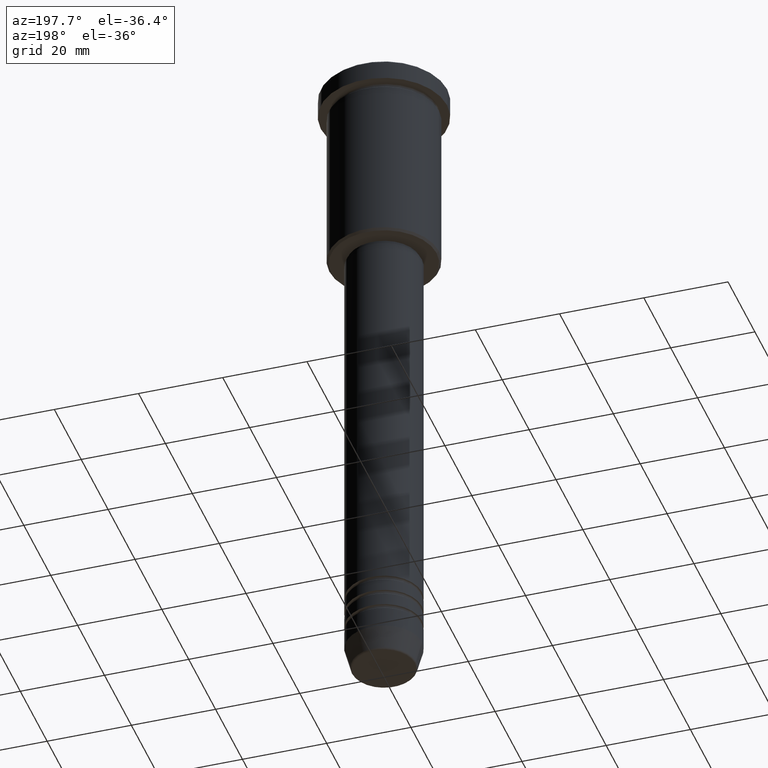
[diagram: clean part render]
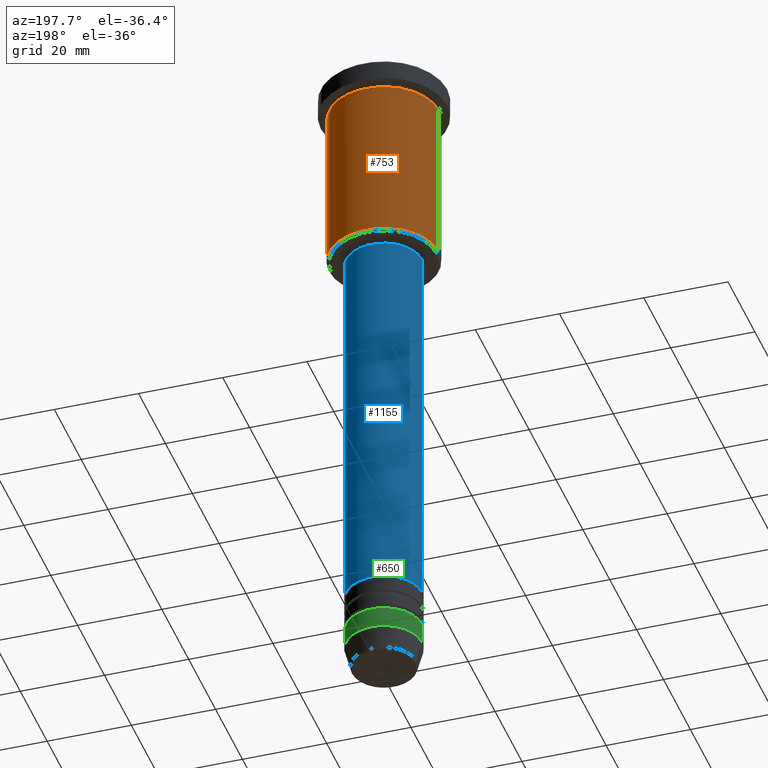
[diagram: same view with three faces highlighted in distinct colors, each labeled with its STEP entity id]
A machine part, auxiliary view with three faces highlighted in distinct colors.
Their STEP definitions:

[orange] entity #753 — the highlighted cylindrical surface (partial cylindrical patch) has radius 13 mm, axis along (-0, -0, 1).
#11 = VERTEX_POINT ( 'NONE', #544 ) ;
#49 = DIRECTION ( 'NONE',  ( 1.000000000000000000, 0.000000000000000000, 0.000000000000000000 ) ) ;
#83 = LINE ( 'NONE', #807, #364 ) ;
#97 = DIRECTION ( 'NONE',  ( 1.000000000000000000, 0.000000000000000000, 0.000000000000000000 ) ) ;
#127 = CYLINDRICAL_SURFACE ( 'NONE', #269, 13.00000000000000178 ) ;
#139 = AXIS2_PLACEMENT_3D ( 'NONE', #481, #549, #97 ) ;
#143 = DIRECTION ( 'NONE',  ( -1.000000000000000000, 0.000000000000000000, 0.000000000000000000 ) ) ;
#153 = CARTESIAN_POINT ( 'NONE',  ( 0.000000000000000000, 0.000000000000000000, -45.49999999999996447 ) ) ;
#269 = AXIS2_PLACEMENT_3D ( 'NONE', #393, #491, #49 ) ;
#283 = EDGE_CURVE ( 'NONE', #11, #993, #1133, .T. ) ;
#297 = CARTESIAN_POINT ( 'NONE',  ( -13.00000000000000178, 1.592040838891559293E-15, -45.49999999999996447 ) ) ;
#364 = VECTOR ( 'NONE', #892, 1000.000000000000000 ) ;
#393 = CARTESIAN_POINT ( 'NONE',  ( 0.000000000000000000, 0.000000000000000000, 0.000000000000000000 ) ) ;
#404 = EDGE_CURVE ( 'NONE', #993, #1070, #83, .T. ) ;
#438 = EDGE_CURVE ( 'NONE', #11, #876, #526, .T. ) ;
#463 = ORIENTED_EDGE ( 'NONE', *, *, #586, .F. ) ;
#481 = CARTESIAN_POINT ( 'NONE',  ( 0.000000000000000000, 0.000000000000000000, -5.999999999999999112 ) ) ;
#491 = DIRECTION ( 'NONE',  ( -0.000000000000000000, -0.000000000000000000, 1.000000000000000000 ) ) ;
#526 = LINE ( 'NONE', #730, #812 ) ;
#544 = CARTESIAN_POINT ( 'NONE',  ( 13.00000000000000178, 0.000000000000000000, -45.49999999999996447 ) ) ;
#549 = DIRECTION ( 'NONE',  ( -0.000000000000000000, -0.000000000000000000, 1.000000000000000000 ) ) ;
#586 = EDGE_CURVE ( 'NONE', #876, #1070, #656, .T. ) ;
#636 = AXIS2_PLACEMENT_3D ( 'NONE', #153, #1054, #143 ) ;
#656 = CIRCLE ( 'NONE', #139, 13.00000000000000178 ) ;
#730 = CARTESIAN_POINT ( 'NONE',  ( 13.00000000000000178, 0.000000000000000000, 0.000000000000000000 ) ) ;
#738 = ORIENTED_EDGE ( 'NONE', *, *, #283, .T. ) ;
#753 = ADVANCED_FACE ( 'NONE', ( #942 ), #127, .T. ) ;
#807 = CARTESIAN_POINT ( 'NONE',  ( -13.00000000000000178, 1.592040838891559293E-15, 0.000000000000000000 ) ) ;
#812 = VECTOR ( 'NONE', #994, 1000.000000000000000 ) ;
#876 = VERTEX_POINT ( 'NONE', #896 ) ;
#884 = EDGE_LOOP ( 'NONE', ( #738, #1078, #463, #1094 ) ) ;
#892 = DIRECTION ( 'NONE',  ( -0.000000000000000000, -0.000000000000000000, 1.000000000000000000 ) ) ;
#896 = CARTESIAN_POINT ( 'NONE',  ( 13.00000000000000178, 0.000000000000000000, -5.999999999999999112 ) ) ;
#942 = FACE_OUTER_BOUND ( 'NONE', #884, .T. ) ;
#991 = CARTESIAN_POINT ( 'NONE',  ( -13.00000000000000178, 1.592040838891559293E-15, -5.999999999999999112 ) ) ;
#993 = VERTEX_POINT ( 'NONE', #297 ) ;
#994 = DIRECTION ( 'NONE',  ( -0.000000000000000000, -0.000000000000000000, 1.000000000000000000 ) ) ;
#1054 = DIRECTION ( 'NONE',  ( -0.000000000000000000, -0.000000000000000000, 1.000000000000000000 ) ) ;
#1070 = VERTEX_POINT ( 'NONE', #991 ) ;
#1078 = ORIENTED_EDGE ( 'NONE', *, *, #404, .T. ) ;
#1094 = ORIENTED_EDGE ( 'NONE', *, *, #438, .F. ) ;
#1133 = CIRCLE ( 'NONE', #636, 13.00000000000000178 ) ;

[blue] entity #1155 — the highlighted cylindrical surface (partial cylindrical patch) has radius 9 mm, axis along (-0, -0, 1).
#8 = DIRECTION ( 'NONE',  ( -0.000000000000000000, -0.000000000000000000, 1.000000000000000000 ) ) ;
#13 = DIRECTION ( 'NONE',  ( -0.000000000000000000, -0.000000000000000000, 1.000000000000000000 ) ) ;
#131 = DIRECTION ( 'NONE',  ( -0.000000000000000000, -0.000000000000000000, 1.000000000000000000 ) ) ;
#145 = EDGE_CURVE ( 'NONE', #1082, #717, #570, .T. ) ;
#272 = VERTEX_POINT ( 'NONE', #705 ) ;
#289 = VECTOR ( 'NONE', #8, 1000.000000000000000 ) ;
#305 = EDGE_CURVE ( 'NONE', #272, #907, #789, .T. ) ;
#327 = DIRECTION ( 'NONE',  ( -0.000000000000000000, -0.000000000000000000, 1.000000000000000000 ) ) ;
#384 = DIRECTION ( 'NONE',  ( 1.000000000000000000, 0.000000000000000000, 0.000000000000000000 ) ) ;
#407 = CYLINDRICAL_SURFACE ( 'NONE', #905, 9.000000000000000000 ) ;
#422 = ORIENTED_EDGE ( 'NONE', *, *, #305, .F. ) ;
#474 = CARTESIAN_POINT ( 'NONE',  ( 0.000000000000000000, 0.000000000000000000, -47.00000000000003553 ) ) ;
#512 = EDGE_CURVE ( 'NONE', #272, #1082, #618, .T. ) ;
#536 = AXIS2_PLACEMENT_3D ( 'NONE', #568, #1018, #1177 ) ;
#565 = EDGE_LOOP ( 'NONE', ( #1172, #1153, #904, #422 ) ) ;
#568 = CARTESIAN_POINT ( 'NONE',  ( 0.000000000000000000, 0.000000000000000000, -140.5000000000000000 ) ) ;
#570 = LINE ( 'NONE', #841, #289 ) ;
#618 = CIRCLE ( 'NONE', #536, 9.000000000000001776 ) ;
#635 = EDGE_CURVE ( 'NONE', #907, #717, #739, .T. ) ;
#705 = CARTESIAN_POINT ( 'NONE',  ( 9.000000000000001776, 0.000000000000000000, -140.5000000000000000 ) ) ;
#717 = VERTEX_POINT ( 'NONE', #1125 ) ;
#739 = CIRCLE ( 'NONE', #815, 8.999999999999998224 ) ;
#789 = LINE ( 'NONE', #1132, #833 ) ;
#815 = AXIS2_PLACEMENT_3D ( 'NONE', #474, #13, #384 ) ;
#833 = VECTOR ( 'NONE', #327, 1000.000000000000000 ) ;
#841 = CARTESIAN_POINT ( 'NONE',  ( -9.000000000000000000, 1.102182119232617714E-15, 0.000000000000000000 ) ) ;
#887 = CARTESIAN_POINT ( 'NONE',  ( 8.999999999999998224, 0.000000000000000000, -47.00000000000003553 ) ) ;
#904 = ORIENTED_EDGE ( 'NONE', *, *, #635, .F. ) ;
#905 = AXIS2_PLACEMENT_3D ( 'NONE', #1037, #131, #1021 ) ;
#907 = VERTEX_POINT ( 'NONE', #887 ) ;
#950 = FACE_OUTER_BOUND ( 'NONE', #565, .T. ) ;
#1018 = DIRECTION ( 'NONE',  ( -0.000000000000000000, -0.000000000000000000, 1.000000000000000000 ) ) ;
#1021 = DIRECTION ( 'NONE',  ( 1.000000000000000000, 0.000000000000000000, 0.000000000000000000 ) ) ;
#1037 = CARTESIAN_POINT ( 'NONE',  ( 0.000000000000000000, 0.000000000000000000, 0.000000000000000000 ) ) ;
#1082 = VERTEX_POINT ( 'NONE', #1121 ) ;
#1121 = CARTESIAN_POINT ( 'NONE',  ( -9.000000000000001776, 1.102182119232617911E-15, -140.5000000000000000 ) ) ;
#1125 = CARTESIAN_POINT ( 'NONE',  ( -8.999999999999998224, 1.102182119232617714E-15, -47.00000000000003553 ) ) ;
#1132 = CARTESIAN_POINT ( 'NONE',  ( 9.000000000000000000, 0.000000000000000000, 0.000000000000000000 ) ) ;
#1153 = ORIENTED_EDGE ( 'NONE', *, *, #145, .T. ) ;
#1155 = ADVANCED_FACE ( 'NONE', ( #950 ), #407, .T. ) ;
#1172 = ORIENTED_EDGE ( 'NONE', *, *, #512, .T. ) ;
#1177 = DIRECTION ( 'NONE',  ( 1.000000000000000000, 0.000000000000000000, 0.000000000000000000 ) ) ;

[green] entity #650 — the highlighted cylindrical surface (partial cylindrical patch) has radius 9 mm, axis along (-0, -0, 1).
#16 = AXIS2_PLACEMENT_3D ( 'NONE', #23, #919, #743 ) ;
#23 = CARTESIAN_POINT ( 'NONE',  ( 0.000000000000000000, 0.000000000000000000, -154.5000000000000000 ) ) ;
#182 = EDGE_CURVE ( 'NONE', #308, #187, #1111, .T. ) ;
#187 = VERTEX_POINT ( 'NONE', #489 ) ;
#213 = DIRECTION ( 'NONE',  ( -0.000000000000000000, -0.000000000000000000, 1.000000000000000000 ) ) ;
#228 = DIRECTION ( 'NONE',  ( -0.000000000000000000, -0.000000000000000000, 1.000000000000000000 ) ) ;
#250 = EDGE_LOOP ( 'NONE', ( #313, #1176, #707, #1086 ) ) ;
#291 = CARTESIAN_POINT ( 'NONE',  ( 9.000000000000001776, 0.000000000000000000, -154.5000000000000000 ) ) ;
#306 = DIRECTION ( 'NONE',  ( 1.000000000000000000, 0.000000000000000000, 0.000000000000000000 ) ) ;
#308 = VERTEX_POINT ( 'NONE', #402 ) ;
#313 = ORIENTED_EDGE ( 'NONE', *, *, #520, .T. ) ;
#333 = EDGE_CURVE ( 'NONE', #1107, #187, #515, .T. ) ;
#345 = CIRCLE ( 'NONE', #16, 9.000000000000001776 ) ;
#402 = CARTESIAN_POINT ( 'NONE',  ( -9.000000000000001776, 1.102182119232617911E-15, -154.5000000000000000 ) ) ;
#408 = CYLINDRICAL_SURFACE ( 'NONE', #850, 9.000000000000001776 ) ;
#417 = CARTESIAN_POINT ( 'NONE',  ( 0.000000000000000000, 0.000000000000000000, 0.000000000000000000 ) ) ;
#489 = CARTESIAN_POINT ( 'NONE',  ( -9.000000000000000000, 1.102182119232617714E-15, -149.5000000000000000 ) ) ;
#493 = CARTESIAN_POINT ( 'NONE',  ( 0.000000000000000000, 0.000000000000000000, -149.5000000000000000 ) ) ;
#508 = CARTESIAN_POINT ( 'NONE',  ( 9.000000000000000000, 0.000000000000000000, -149.5000000000000000 ) ) ;
#515 = CIRCLE ( 'NONE', #597, 9.000000000000000000 ) ;
#520 = EDGE_CURVE ( 'NONE', #522, #308, #345, .T. ) ;
#522 = VERTEX_POINT ( 'NONE', #291 ) ;
#583 = CARTESIAN_POINT ( 'NONE',  ( -9.000000000000001776, 1.102182119232617911E-15, 0.000000000000000000 ) ) ;
#592 = DIRECTION ( 'NONE',  ( 1.000000000000000000, 0.000000000000000000, 0.000000000000000000 ) ) ;
#597 = AXIS2_PLACEMENT_3D ( 'NONE', #493, #228, #592 ) ;
#650 = ADVANCED_FACE ( 'NONE', ( #1105 ), #408, .T. ) ;
#707 = ORIENTED_EDGE ( 'NONE', *, *, #333, .F. ) ;
#743 = DIRECTION ( 'NONE',  ( 1.000000000000000000, 0.000000000000000000, 0.000000000000000000 ) ) ;
#782 = CARTESIAN_POINT ( 'NONE',  ( 9.000000000000001776, 0.000000000000000000, 0.000000000000000000 ) ) ;
#850 = AXIS2_PLACEMENT_3D ( 'NONE', #417, #874, #306 ) ;
#874 = DIRECTION ( 'NONE',  ( -0.000000000000000000, -0.000000000000000000, 1.000000000000000000 ) ) ;
#919 = DIRECTION ( 'NONE',  ( -0.000000000000000000, -0.000000000000000000, 1.000000000000000000 ) ) ;
#943 = DIRECTION ( 'NONE',  ( -0.000000000000000000, -0.000000000000000000, 1.000000000000000000 ) ) ;
#1033 = LINE ( 'NONE', #782, #1047 ) ;
#1047 = VECTOR ( 'NONE', #213, 1000.000000000000000 ) ;
#1086 = ORIENTED_EDGE ( 'NONE', *, *, #1129, .F. ) ;
#1105 = FACE_OUTER_BOUND ( 'NONE', #250, .T. ) ;
#1107 = VERTEX_POINT ( 'NONE', #508 ) ;
#1111 = LINE ( 'NONE', #583, #1116 ) ;
#1116 = VECTOR ( 'NONE', #943, 1000.000000000000000 ) ;
#1129 = EDGE_CURVE ( 'NONE', #522, #1107, #1033, .T. ) ;
#1176 = ORIENTED_EDGE ( 'NONE', *, *, #182, .T. ) ;